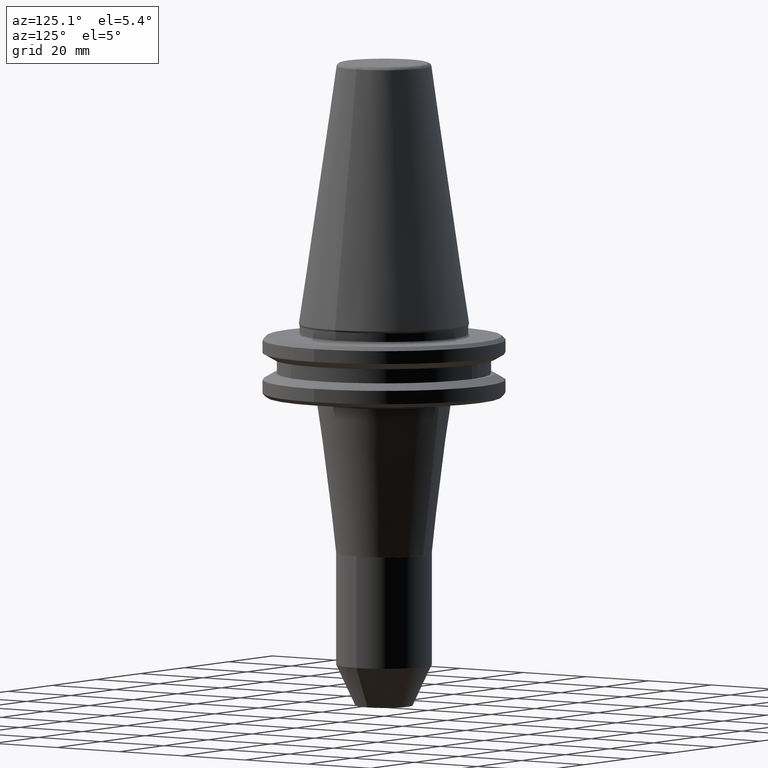
[diagram: clean part render]
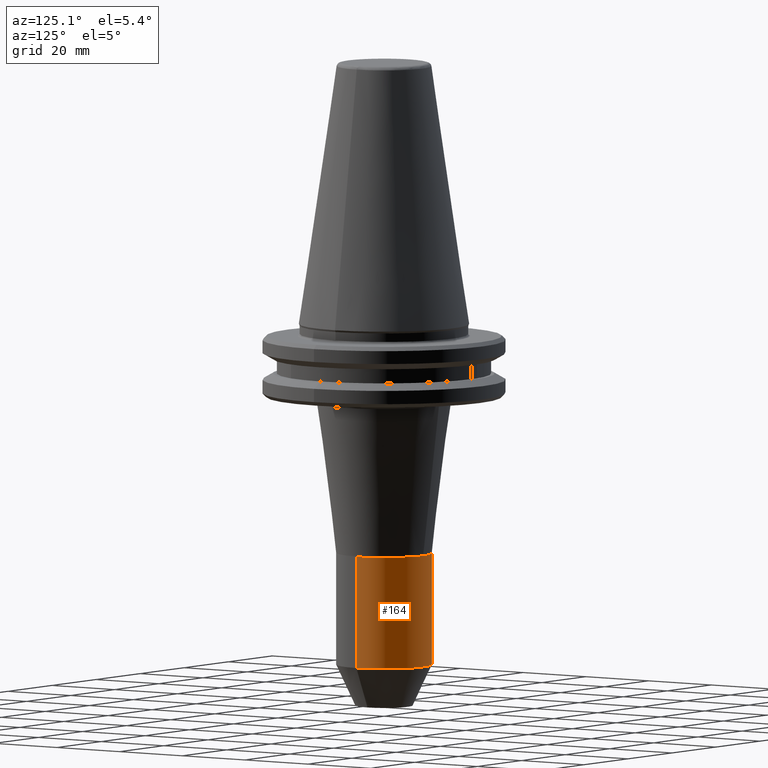
[diagram: same view with one face highlighted and labeled with its STEP entity id]
A machine part, auxiliary view. The second image highlights one B-rep face of the part: STEP entity #164.
In plain terms, the highlighted cylindrical surface (partial cylindrical patch) has radius 12.5 mm, axis along (0, 0, 1).
Its self-contained STEP definition (entity closure, byte-faithful):
#8 = CARTESIAN_POINT ( 'NONE',  ( 12.49999999999999600, 0.0000000000000000000, -89.27746539700001400 ) ) ;
#23 = CARTESIAN_POINT ( 'NONE',  ( 0.0000000000000000000, 0.0000000000000000000, -89.27746539700000000 ) ) ;
#27 = DIRECTION ( 'NONE',  ( 1.000000000000000000, 0.0000000000000000000, 0.0000000000000000000 ) ) ;
#60 = AXIS2_PLACEMENT_3D ( 'NONE', #23, #909, #27 ) ;
#163 = VERTEX_POINT ( 'NONE', #8 ) ;
#164 = ADVANCED_FACE ( 'NONE', ( #220 ), #184, .T. ) ;
#184 = CYLINDRICAL_SURFACE ( 'NONE', #60, 12.50000000000000000 ) ;
#211 = ORIENTED_EDGE ( 'NONE', *, *, #558, .T. ) ;
#214 = AXIS2_PLACEMENT_3D ( 'NONE', #1455, #1147, #1474 ) ;
#220 = FACE_OUTER_BOUND ( 'NONE', #1104, .T. ) ;
#226 = ORIENTED_EDGE ( 'NONE', *, *, #361, .F. ) ;
#228 = EDGE_CURVE ( 'NONE', #862, #878, #1473, .T. ) ;
#361 = EDGE_CURVE ( 'NONE', #163, #586, #1037, .T. ) ;
#486 = VECTOR ( 'NONE', #1369, 1000.000000000000000 ) ;
#523 = ORIENTED_EDGE ( 'NONE', *, *, #228, .T. ) ;
#537 = VECTOR ( 'NONE', #1163, 1000.000000000000000 ) ;
#558 = EDGE_CURVE ( 'NONE', #163, #862, #966, .T. ) ;
#586 = VERTEX_POINT ( 'NONE', #1226 ) ;
#748 = EDGE_CURVE ( 'NONE', #878, #586, #1398, .T. ) ;
#862 = VERTEX_POINT ( 'NONE', #980 ) ;
#878 = VERTEX_POINT ( 'NONE', #1205 ) ;
#892 = CARTESIAN_POINT ( 'NONE',  ( -12.50000000000000000, 1.530808498934191500E-015, -89.27746539700000000 ) ) ;
#909 = DIRECTION ( 'NONE',  ( 0.0000000000000000000, 0.0000000000000000000, 1.000000000000000000 ) ) ;
#966 = CIRCLE ( 'NONE', #1000, 12.50000000000000000 ) ;
#980 = CARTESIAN_POINT ( 'NONE',  ( -12.49999999999999600, 1.530808498934191100E-015, -89.27746539700001400 ) ) ;
#989 = DIRECTION ( 'NONE',  ( 1.000000000000000000, 0.0000000000000000000, 0.0000000000000000000 ) ) ;
#1000 = AXIS2_PLACEMENT_3D ( 'NONE', #1148, #1153, #989 ) ;
#1037 = LINE ( 'NONE', #1230, #486 ) ;
#1104 = EDGE_LOOP ( 'NONE', ( #211, #523, #1476, #226 ) ) ;
#1147 = DIRECTION ( 'NONE',  ( -0.0000000000000000000, -5.551115123109951200E-016, -1.000000000000000000 ) ) ;
#1148 = CARTESIAN_POINT ( 'NONE',  ( 0.0000000000000000000, 0.0000000000000000000, -89.27746539700001400 ) ) ;
#1153 = DIRECTION ( 'NONE',  ( 0.0000000000000000000, 0.0000000000000000000, 1.000000000000000000 ) ) ;
#1163 = DIRECTION ( 'NONE',  ( 0.0000000000000000000, 0.0000000000000000000, 1.000000000000000000 ) ) ;
#1205 = CARTESIAN_POINT ( 'NONE',  ( -12.49999999980871700, -1.281896141189321800E-009, -60.12681231971502900 ) ) ;
#1226 = CARTESIAN_POINT ( 'NONE',  ( 12.49999999987247700, -5.612108000809098600E-010, -60.12681231973402200 ) ) ;
#1230 = CARTESIAN_POINT ( 'NONE',  ( 12.50000000000000000, 0.0000000000000000000, -89.27746539700000000 ) ) ;
#1369 = DIRECTION ( 'NONE',  ( 0.0000000000000000000, 0.0000000000000000000, 1.000000000000000000 ) ) ;
#1398 = CIRCLE ( 'NONE', #214, 12.49999999974495200 ) ;
#1455 = CARTESIAN_POINT ( 'NONE',  ( 0.0000000000000000000, 0.0000000000000000000, -60.12681231977201400 ) ) ;
#1473 = LINE ( 'NONE', #892, #537 ) ;
#1474 = DIRECTION ( 'NONE',  ( 0.0000000000000000000, 1.000000000000000000, -5.551115123239046400E-016 ) ) ;
#1476 = ORIENTED_EDGE ( 'NONE', *, *, #748, .T. ) ;